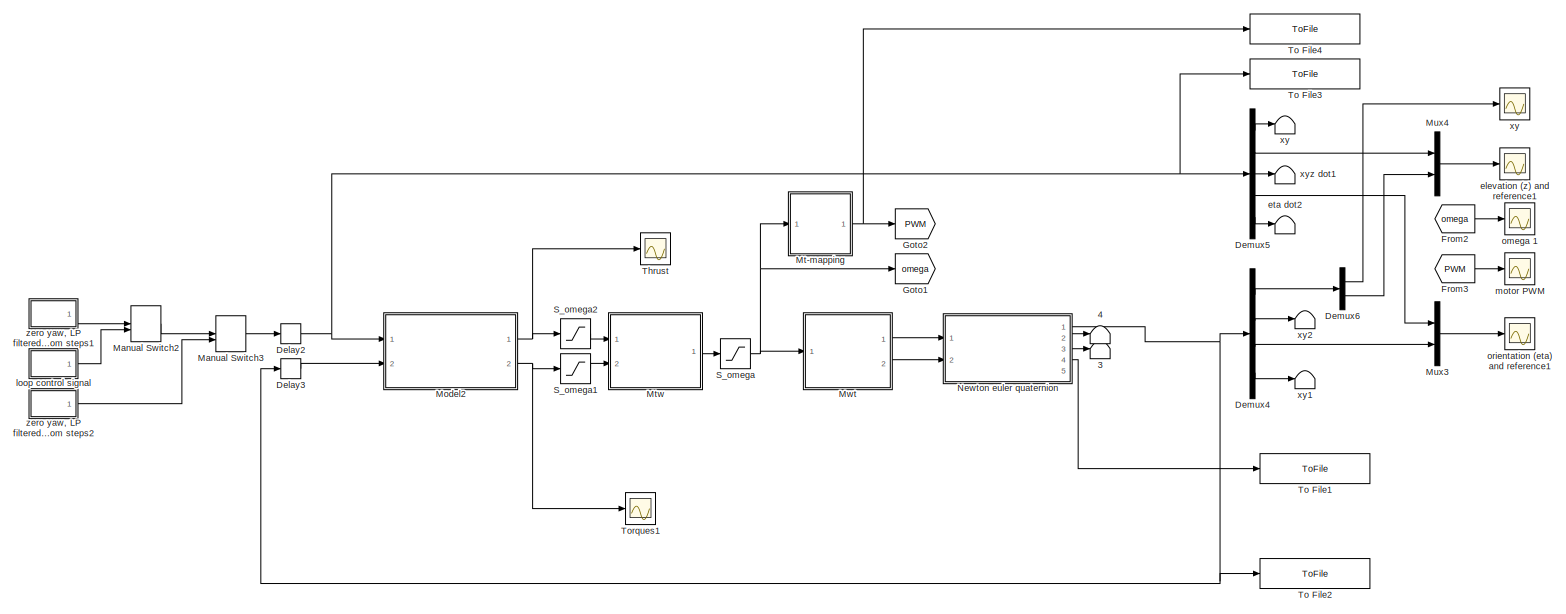
[diagram: root canvas - part 1/1, most of the canvas]
MODEL slx_ab67e1c59dba
KIND model
CONFIG AbsTol = auto
CONFIG FixedStep = auto
CONFIG MaxStep = auto
CONFIG MinStep = auto
CONFIG RelTol = 1e-3
CONFIG SampleTimeConstraint = Unconstrained
CONFIG Solver = VariableStepAuto
CONFIG SolverMode = Auto
CONFIG SolverName = VariableStepAuto
CONFIG StartTime = 0.0
CONFIG StopTime = 30
BLOCK [Terminator]    3
BLOCK [Terminator]    4
BLOCK [Terminator]    eta dot2
BLOCK [Terminator]    xy
BLOCK [Terminator]    xy1
BLOCK [Terminator]    xy2
BLOCK [Terminator]   xyz dot1
BLOCK [Delay] Delay2
  DelayLength = 1
  InitialCondition = 0
  InputPortMap = u0
  Ports = [1, 1]
  SampleTime = inner_h
BLOCK [Delay] Delay3
  DelayLength = 1
  InitialCondition = 0
  InputPortMap = u0
  Ports = [1, 1]
  SampleTime = inner_h
BLOCK [Demux] Demux4
  DisplayOption = bar
  Outputs = [3,3,3,3]
  Ports = [1, 4]
BLOCK [Demux] Demux5
  DisplayOption = bar
  Outputs = [2,1,3,3,3]
  Ports = [1, 5]
BLOCK [Demux] Demux6
  DisplayOption = bar
  Outputs = [2,1]
  Ports = [1, 2]
BLOCK [From] From2
  GotoTag = omega
BLOCK [From] From3
  GotoTag = PWM
BLOCK [Goto] Goto1
  GotoTag = omega
BLOCK [Goto] Goto2
  GotoTag = PWM
BLOCK [ManualSwitch] Manual Switch2
BLOCK [ManualSwitch] Manual Switch3
BLOCK [ModelReference] Model2
  ModelNameDialog = inner_PD_c.mdl
  ModelReferenceVersion = 1.87
  Ports = [2, 2]
  Variant = off
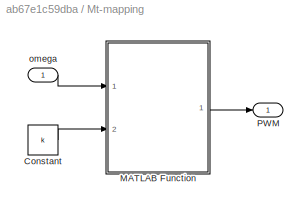
BLOCK [SubSystem] Mt-mapping
  Ports = [1, 1]
  RequestExecContextInheritance = off
  Variant = off
BLOCK [Constant] Mt-mapping/Constant
  Value = k
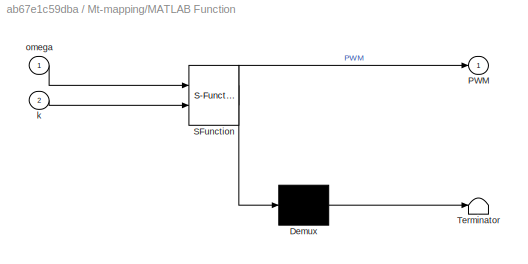
BLOCK [SubSystem] Mt-mapping/MATLAB Function
  ErrorFcn = Stateflow.Translate.translate
  PermitHierarchicalResolution = ExplicitOnly
  Ports = [2, 1]
  RequestExecContextInheritance = off
  SFBlockType = MATLAB Function
  TreatAsAtomicUnit = on
  Variant = off
BLOCK [Demux] Mt-mapping/MATLAB Function/ Demux 
  Outputs = 1
  Ports = [1, 1]
BLOCK [S-Function] Mt-mapping/MATLAB Function/ SFunction 
  EnableBusSupport = on
  FunctionName = sf_sfun
  PortCounts = [2 2]
  Ports = [2, 2]
  SFunctionDeploymentMode = off
  Tag = Stateflow S-Function inner_pd_continuous_test 3
BLOCK [Terminator] Mt-mapping/MATLAB Function/ Terminator 
BLOCK [Outport] Mt-mapping/MATLAB Function/PWM
  IconDisplay = Port number
BLOCK [Inport] Mt-mapping/MATLAB Function/k
  IconDisplay = Port number
  Port = 2
BLOCK [Inport] Mt-mapping/MATLAB Function/omega
  IconDisplay = Port number
BLOCK [Outport] Mt-mapping/PWM
  IconDisplay = Port number
BLOCK [Inport] Mt-mapping/omega
  IconDisplay = Port number
BLOCK [ModelReference] Mtw
  ModelNameDialog = thrust2omega.mdl
  ModelReferenceVersion = 1.3
  Ports = [2, 1]
  Variant = off
BLOCK [Mux] Mux3
  DisplayOption = bar
  Inputs = 2
  Ports = [2, 1]
BLOCK [Mux] Mux4
  DisplayOption = bar
  Inputs = 2
  Ports = [2, 1]
BLOCK [ModelReference] Mwt
  ModelNameDialog = omega2thrust.mdl
  ModelReferenceVersion = 1.3
  Ports = [1, 2]
  Variant = off
BLOCK [ModelReference] Newton euler quaternion
  ModelNameDialog = quadcopter_model_c_NewtonEuler.mdl
  ModelReferenceVersion = 1.324
  Ports = [2, 5]
  Variant = off
BLOCK [Saturate] S_omega
  InputPortMap = u0
  LowerLimit = omega_min_lim
  Ports = [1, 1]
  UpperLimit = omega_max_lim
BLOCK [Saturate] S_omega1
  InputPortMap = u0
  LowerLimit = tau_min_lim
  Ports = [1, 1]
  UpperLimit = tau_max_lim
BLOCK [Saturate] S_omega2
  InputPortMap = u0
  LowerLimit = tau_min_lim
  Ports = [1, 1]
  UpperLimit = T_max_lim
BLOCK [Scope] Thrust
  Ports = [1]
  ScopeSpecificationString = Simulink.scopes.TimeScopeBlockCfg('CurrentConfiguration', extmgr.ConfigurationSet(extmgr.Configuration('Core','General UI',true),extmgr.Configuration('Core','Source UI',true),extmgr.Configuration('Sources','WiredSimulink',true,'DataLoggingVariableName','ScopeData1','DataLoggingSaveFormat','Array','DataLoggingDecimation','1','DataLoggingDecimateData',true),extmgr.Configuration('Visuals','Time Domai...<+1456ch>
BLOCK [ToFile] To File1
  Filename = Accelerations
  MatrixName = Accel
  Ports = [1]
  SampleTime = inner_h
  SaveFormat = Timeseries
BLOCK [ToFile] To File2
  Filename = inner_PD_data.mat
  MatrixName = PD_data
  Ports = [1]
  SampleTime = inner_h
  SaveFormat = Timeseries
BLOCK [ToFile] To File3
  Filename = inner_PD_ref.mat
  MatrixName = PD_ref
  Ports = [1]
  SampleTime = inner_h
  SaveFormat = Timeseries
BLOCK [ToFile] To File4
  Filename = PWM_ref.mat
  MatrixName = PWM
  Ports = [1]
  SampleTime = inner_h
  SaveFormat = Timeseries
BLOCK [Scope] Torques1
  Ports = [1]
  ScopeSpecificationString = Simulink.scopes.TimeScopeBlockCfg('CurrentConfiguration', extmgr.ConfigurationSet(extmgr.Configuration('Core','General UI',true),extmgr.Configuration('Core','Source UI',true),extmgr.Configuration('Sources','WiredSimulink',true,'DataLoggingVariableName','ScopeData3','DataLoggingSaveFormat','Array','DataLoggingDecimation','1','DataLoggingDecimateData',true),extmgr.Configuration('Visuals','Time Domai...<+1608ch>
BLOCK [Scope] elevation (z) and reference1
  Ports = [1]
  ScopeSpecificationString = Simulink.scopes.TimeScopeBlockCfg('CurrentConfiguration', extmgr.ConfigurationSet(extmgr.Configuration('Core','General UI',true),extmgr.Configuration('Core','Source UI',true),extmgr.Configuration('Sources','WiredSimulink',true,'DataLoggingVariableName','ScopeData4','DataLoggingSaveFormat','Array','DataLoggingDecimation','1','DataLoggingDecimateData',true),extmgr.Configuration('Visuals','Time Domai...<+1469ch>
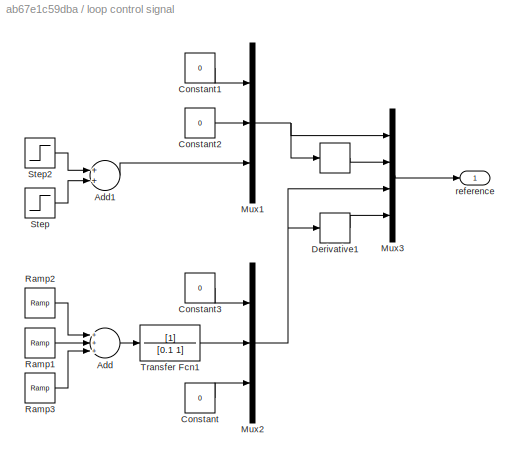
BLOCK [SubSystem] loop control signal
  Ports = [0, 1]
  RequestExecContextInheritance = off
  Variant = off
BLOCK [Derivative] loop control signal/        
BLOCK [Sum] loop control signal/Add
  InputSameDT = off
  Inputs = +++
  OutDataTypeStr = Inherit: Inherit via internal rule
  Ports = [3, 1]
  SaturateOnIntegerOverflow = off
BLOCK [Sum] loop control signal/Add1
  InputSameDT = off
  OutDataTypeStr = Inherit: Inherit via internal rule
  Ports = [2, 1]
  SaturateOnIntegerOverflow = off
BLOCK [Constant] loop control signal/Constant
  Value = 0
BLOCK [Constant] loop control signal/Constant1
  Value = 0
BLOCK [Constant] loop control signal/Constant2
  Value = 0
BLOCK [Constant] loop control signal/Constant3
  Value = 0
BLOCK [Derivative] loop control signal/Derivative1
BLOCK [Mux] loop control signal/Mux1
  DisplayOption = bar
  Inputs = 3
  Ports = [3, 1]
BLOCK [Mux] loop control signal/Mux2
  DisplayOption = bar
  Inputs = 3
  Ports = [3, 1]
BLOCK [Mux] loop control signal/Mux3
  DisplayOption = bar
  Inputs = [3,3,3,3]
  Ports = [4, 1]
BLOCK [Reference] loop control signal/Ramp1  REF=simulink/Sources/Ramp
  Ports = [0, 1]
  SourceBlock = simulink/Sources/Ramp
  SourceType = Ramp
BLOCK [Reference] loop control signal/Ramp2  REF=simulink/Sources/Ramp
  Ports = [0, 1]
  SourceBlock = simulink/Sources/Ramp
  SourceType = Ramp
BLOCK [Reference] loop control signal/Ramp3  REF=simulink/Sources/Ramp
  Ports = [0, 1]
  SourceBlock = simulink/Sources/Ramp
  SourceType = Ramp
BLOCK [Step] loop control signal/Step
  After = -2
  SampleTime = 0
  Time = 5.5
BLOCK [Step] loop control signal/Step2
  After = 2
  SampleTime = 0
  Time = 3.6
BLOCK [TransferFcn] loop control signal/Transfer Fcn1
  Denominator = [0.1 1]
BLOCK [Outport] loop control signal/reference
  IconDisplay = Port number
BLOCK [Scope] motor PWM
  Ports = [1]
  ScopeSpecificationString = C++SS(StrPVP('SaveName','ScopeData5'),StrPVP('LimitDataPoints','on'),StrPVP('DataFormat','Array'),StrPVP('Decimation','1'),StrPVP('BlockParamSampleInput','off'))
BLOCK [Scope] omega 1
  Ports = [1]
  ScopeSpecificationString = C++SS(StrPVP('SaveName','ScopeData6'),StrPVP('LimitDataPoints','on'),StrPVP('DataFormat','Array'),StrPVP('Decimation','1'),StrPVP('BlockParamSampleInput','off'))
BLOCK [Scope] orientation (eta) and reference1
  Ports = [1]
  ScopeSpecificationString = Simulink.scopes.TimeScopeBlockCfg('CurrentConfiguration', extmgr.ConfigurationSet(extmgr.Configuration('Core','General UI',true),extmgr.Configuration('Core','Source UI',true),extmgr.Configuration('Sources','WiredSimulink',true,'DataLoggingVariableName','ScopeData7','DataLoggingSaveFormat','Array','DataLoggingDecimation','1','DataLoggingDecimateData',true),extmgr.Configuration('Visuals','Time Domai...<+1525ch>
BLOCK [Scope] xy
  Ports = [1]
  ScopeSpecificationString = Simulink.scopes.TimeScopeBlockCfg('CurrentConfiguration', extmgr.ConfigurationSet(extmgr.Configuration('Core','General UI',true),extmgr.Configuration('Core','Source UI',true),extmgr.Configuration('Sources','WiredSimulink',true,'DataLoggingVariableName','ScopeData8','DataLoggingLimitDataPoints',true,'DataLoggingSaveFormat','Array','DataLoggingDecimation','1','DataLoggingDecimateData',true),extmgr.C...<+1521ch>
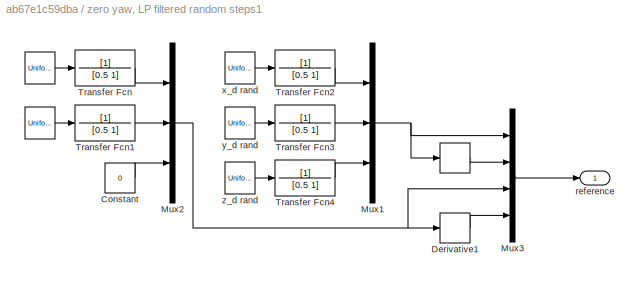
BLOCK [SubSystem] zero yaw, LP filtered random steps1
  Ports = [0, 1]
  RequestExecContextInheritance = off
  Variant = off
BLOCK [UniformRandomNumber] zero yaw, LP filtered random steps1/ 
  Maximum = 0.2
  Minimum = -0.2
  SampleTime = 10
  Seed = 4
BLOCK [UniformRandomNumber] zero yaw, LP filtered random steps1/   
  Maximum = 0.2
  Minimum = -0.2
  SampleTime = 10
  Seed = 3
BLOCK [Derivative] zero yaw, LP filtered random steps1/        
BLOCK [Constant] zero yaw, LP filtered random steps1/Constant
  Value = 0
BLOCK [Derivative] zero yaw, LP filtered random steps1/Derivative1
BLOCK [Mux] zero yaw, LP filtered random steps1/Mux1
  DisplayOption = bar
  Inputs = 3
  Ports = [3, 1]
BLOCK [Mux] zero yaw, LP filtered random steps1/Mux2
  DisplayOption = bar
  Inputs = 3
  Ports = [3, 1]
BLOCK [Mux] zero yaw, LP filtered random steps1/Mux3
  DisplayOption = bar
  Inputs = [3,3,3,3]
  Ports = [4, 1]
BLOCK [TransferFcn] zero yaw, LP filtered random steps1/Transfer Fcn
  Denominator = [0.5 1]
BLOCK [TransferFcn] zero yaw, LP filtered random steps1/Transfer Fcn1
  Denominator = [0.5 1]
BLOCK [TransferFcn] zero yaw, LP filtered random steps1/Transfer Fcn2
  Denominator = [0.5 1]
BLOCK [TransferFcn] zero yaw, LP filtered random steps1/Transfer Fcn3
  Denominator = [0.5 1]
BLOCK [TransferFcn] zero yaw, LP filtered random steps1/Transfer Fcn4
  Denominator = [0.5 1]
BLOCK [Outport] zero yaw, LP filtered random steps1/reference
  IconDisplay = Port number
BLOCK [UniformRandomNumber] zero yaw, LP filtered random steps1/x_d rand
  Maximum = 5
  Minimum = -5
  SampleTime = 10
BLOCK [UniformRandomNumber] zero yaw, LP filtered random steps1/y_d rand
  Maximum = 5
  Minimum = -5
  SampleTime = 10
  Seed = 1
BLOCK [UniformRandomNumber] zero yaw, LP filtered random steps1/z_d rand
  Maximum = 3
  Minimum = 0
  SampleTime = 10
  Seed = 2
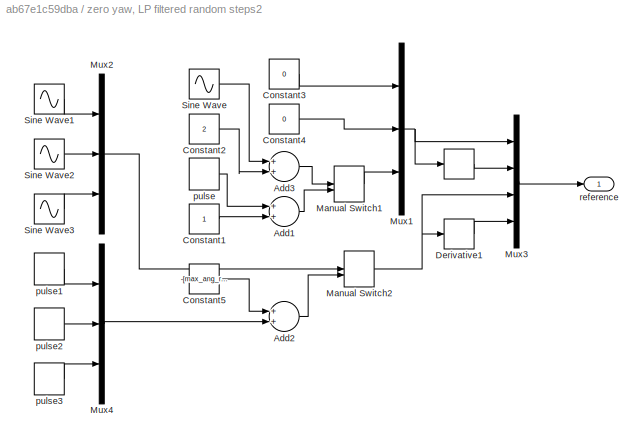
BLOCK [SubSystem] zero yaw, LP filtered random steps2
  Ports = [0, 1]
  RequestExecContextInheritance = off
  Variant = off
BLOCK [Derivative] zero yaw, LP filtered random steps2/        
BLOCK [Sum] zero yaw, LP filtered random steps2/Add1
  InputSameDT = off
  OutDataTypeStr = Inherit: Inherit via internal rule
  Ports = [2, 1]
  SaturateOnIntegerOverflow = off
BLOCK [Sum] zero yaw, LP filtered random steps2/Add2
  InputSameDT = off
  OutDataTypeStr = Inherit: Inherit via internal rule
  Ports = [2, 1]
  SaturateOnIntegerOverflow = off
BLOCK [Sum] zero yaw, LP filtered random steps2/Add3
  InputSameDT = off
  OutDataTypeStr = Inherit: Inherit via internal rule
  Ports = [2, 1]
  SaturateOnIntegerOverflow = off
BLOCK [Constant] zero yaw, LP filtered random steps2/Constant1
BLOCK [Constant] zero yaw, LP filtered random steps2/Constant2
  Value = 2
BLOCK [Constant] zero yaw, LP filtered random steps2/Constant3
  Value = 0
BLOCK [Constant] zero yaw, LP filtered random steps2/Constant4
  Value = 0
BLOCK [Constant] zero yaw, LP filtered random steps2/Constant5
  Value = -[max_ang_ref,max_ang_ref,max_ang_ref]
BLOCK [Derivative] zero yaw, LP filtered random steps2/Derivative1
BLOCK [ManualSwitch] zero yaw, LP filtered random steps2/Manual Switch1
  CurrentSetting = 0
BLOCK [ManualSwitch] zero yaw, LP filtered random steps2/Manual Switch2
BLOCK [Mux] zero yaw, LP filtered random steps2/Mux1
  DisplayOption = bar
  Inputs = 3
  Ports = [3, 1]
BLOCK [Mux] zero yaw, LP filtered random steps2/Mux2
  DisplayOption = bar
  Inputs = 3
  Ports = [3, 1]
BLOCK [Mux] zero yaw, LP filtered random steps2/Mux3
  DisplayOption = bar
  Inputs = [3,3,3,3]
  Ports = [4, 1]
BLOCK [Mux] zero yaw, LP filtered random steps2/Mux4
  DisplayOption = bar
  Inputs = 3
  Ports = [3, 1]
BLOCK [Sin] zero yaw, LP filtered random steps2/Sine Wave
  Ports = [0, 1]
  SampleTime = 0
BLOCK [Sin] zero yaw, LP filtered random steps2/Sine Wave1
  Amplitude = max_ang_ref
  Ports = [0, 1]
  SampleTime = 0
BLOCK [Sin] zero yaw, LP filtered random steps2/Sine Wave2
  Amplitude = max_ang_ref
  Phase = pi/2
  Ports = [0, 1]
BLOCK [Sin] zero yaw, LP filtered random steps2/Sine Wave3
  Amplitude = max_ang_ref
  Phase = pi
  Ports = [0, 1]
  SampleTime = 0
BLOCK [DiscretePulseGenerator] zero yaw, LP filtered random steps2/pulse
  Amplitude = 2
  Period = 10
  Ports = [0, 1]
  PulseType = Time based
  PulseWidth = 50
BLOCK [DiscretePulseGenerator] zero yaw, LP filtered random steps2/pulse1
  Amplitude = max_ang_ref*2
  Period = 10
  Ports = [0, 1]
  PulseType = Time based
  PulseWidth = 50
BLOCK [DiscretePulseGenerator] zero yaw, LP filtered random steps2/pulse2
  Amplitude = max_ang_ref*2
  Period = 10
  Ports = [0, 1]
  PulseType = Time based
  PulseWidth = 50
BLOCK [DiscretePulseGenerator] zero yaw, LP filtered random steps2/pulse3
  Amplitude = max_ang_ref*2
  Period = 10
  Ports = [0, 1]
  PulseType = Time based
  PulseWidth = 50
BLOCK [Outport] zero yaw, LP filtered random steps2/reference
  IconDisplay = Port number
NET Delay2:1 -> Demux5:1, Model2:1, To File3:1
LINE Delay3:1 -> Model2:2
LINE Demux4:1 -> Demux6:1
LINE Demux4:2 ->    xy2:1
LINE Demux4:3 -> Mux3:2
LINE Demux4:4 ->    xy1:1
LINE Demux5:1 ->    xy:1
LINE Demux5:2 -> Mux4:1
LINE Demux5:3 ->   xyz dot1:1
LINE Demux5:4 -> Mux3:1
LINE Demux5:5 ->    eta dot2:1
LINE Demux6:1 -> xy:1
LINE Demux6:2 -> Mux4:2
LINE From2:1 -> omega 1:1
LINE From3:1 -> motor PWM:1
LINE Manual Switch2:1 -> Manual Switch3:1
LINE Manual Switch3:1 -> Delay2:1
NET Model2:1 -> S_omega2:1, Thrust:1
NET Model2:2 -> S_omega1:1, Torques1:1
LINE Mt-mapping/Constant:1 -> Mt-mapping/MATLAB Function:2
LINE Mt-mapping/MATLAB Function:1 -> Mt-mapping/PWM:1
LINE Mt-mapping/omega:1 -> Mt-mapping/MATLAB Function:1
NET Mt-mapping:1 -> Goto2:1, To File4:1
LINE Mtw:1 -> S_omega:1
LINE Mux3:1 -> orientation (eta) and reference1:1
LINE Mux4:1 -> elevation (z) and reference1:1
LINE Mwt:1 -> Newton euler quaternion:1
LINE Mwt:2 -> Newton euler quaternion:2
NET Newton euler quaternion:1 -> Delay3:1, Demux4:1, To File2:1
LINE Newton euler quaternion:2 ->    4:1
LINE Newton euler quaternion:3 ->    3:1
LINE Newton euler quaternion:4 -> To File1:1
LINE S_omega1:1 -> Mtw:2
LINE S_omega2:1 -> Mtw:1
NET S_omega:1 -> Goto1:1, Mt-mapping:1, Mwt:1
LINE loop control signal/        :1 -> loop control signal/Mux3:2
LINE loop control signal/Add1:1 -> loop control signal/Mux1:3
LINE loop control signal/Add:1 -> loop control signal/Transfer Fcn1:1
LINE loop control signal/Constant1:1 -> loop control signal/Mux1:1
LINE loop control signal/Constant2:1 -> loop control signal/Mux1:2
LINE loop control signal/Constant3:1 -> loop control signal/Mux2:1
LINE loop control signal/Constant:1 -> loop control signal/Mux2:3
LINE loop control signal/Derivative1:1 -> loop control signal/Mux3:4
NET loop control signal/Mux1:1 -> loop control signal/        :1, loop control signal/Mux3:1
NET loop control signal/Mux2:1 -> loop control signal/Derivative1:1, loop control signal/Mux3:3
LINE loop control signal/Mux3:1 -> loop control signal/reference:1
LINE loop control signal/Ramp1:1 -> loop control signal/Add:2
LINE loop control signal/Ramp2:1 -> loop control signal/Add:1
LINE loop control signal/Ramp3:1 -> loop control signal/Add:3
LINE loop control signal/Step2:1 -> loop control signal/Add1:1
LINE loop control signal/Step:1 -> loop control signal/Add1:2
LINE loop control signal/Transfer Fcn1:1 -> loop control signal/Mux2:2
LINE loop control signal:1 -> Manual Switch2:2
LINE zero yaw, LP filtered random steps1/        :1 -> zero yaw, LP filtered random steps1/Mux3:2
LINE zero yaw, LP filtered random steps1/   :1 -> zero yaw, LP filtered random steps1/Transfer Fcn:1
LINE zero yaw, LP filtered random steps1/ :1 -> zero yaw, LP filtered random steps1/Transfer Fcn1:1
LINE zero yaw, LP filtered random steps1/Constant:1 -> zero yaw, LP filtered random steps1/Mux2:3
LINE zero yaw, LP filtered random steps1/Derivative1:1 -> zero yaw, LP filtered random steps1/Mux3:4
NET zero yaw, LP filtered random steps1/Mux1:1 -> zero yaw, LP filtered random steps1/        :1, zero yaw, LP filtered random steps1/Mux3:1
NET zero yaw, LP filtered random steps1/Mux2:1 -> zero yaw, LP filtered random steps1/Derivative1:1, zero yaw, LP filtered random steps1/Mux3:3
LINE zero yaw, LP filtered random steps1/Mux3:1 -> zero yaw, LP filtered random steps1/reference:1
LINE zero yaw, LP filtered random steps1/Transfer Fcn1:1 -> zero yaw, LP filtered random steps1/Mux2:2
LINE zero yaw, LP filtered random steps1/Transfer Fcn2:1 -> zero yaw, LP filtered random steps1/Mux1:1
LINE zero yaw, LP filtered random steps1/Transfer Fcn3:1 -> zero yaw, LP filtered random steps1/Mux1:2
LINE zero yaw, LP filtered random steps1/Transfer Fcn4:1 -> zero yaw, LP filtered random steps1/Mux1:3
LINE zero yaw, LP filtered random steps1/Transfer Fcn:1 -> zero yaw, LP filtered random steps1/Mux2:1
LINE zero yaw, LP filtered random steps1/x_d rand:1 -> zero yaw, LP filtered random steps1/Transfer Fcn2:1
LINE zero yaw, LP filtered random steps1/y_d rand:1 -> zero yaw, LP filtered random steps1/Transfer Fcn3:1
LINE zero yaw, LP filtered random steps1/z_d rand:1 -> zero yaw, LP filtered random steps1/Transfer Fcn4:1
LINE zero yaw, LP filtered random steps1:1 -> Manual Switch2:1
LINE zero yaw, LP filtered random steps2/        :1 -> zero yaw, LP filtered random steps2/Mux3:2
LINE zero yaw, LP filtered random steps2/Add1:1 -> zero yaw, LP filtered random steps2/Manual Switch1:2
LINE zero yaw, LP filtered random steps2/Add2:1 -> zero yaw, LP filtered random steps2/Manual Switch2:2
LINE zero yaw, LP filtered random steps2/Add3:1 -> zero yaw, LP filtered random steps2/Manual Switch1:1
LINE zero yaw, LP filtered random steps2/Constant1:1 -> zero yaw, LP filtered random steps2/Add1:2
LINE zero yaw, LP filtered random steps2/Constant2:1 -> zero yaw, LP filtered random steps2/Add3:2
LINE zero yaw, LP filtered random steps2/Constant3:1 -> zero yaw, LP filtered random steps2/Mux1:1
LINE zero yaw, LP filtered random steps2/Constant4:1 -> zero yaw, LP filtered random steps2/Mux1:2
LINE zero yaw, LP filtered random steps2/Constant5:1 -> zero yaw, LP filtered random steps2/Add2:1
LINE zero yaw, LP filtered random steps2/Derivative1:1 -> zero yaw, LP filtered random steps2/Mux3:4
LINE zero yaw, LP filtered random steps2/Manual Switch1:1 -> zero yaw, LP filtered random steps2/Mux1:3
NET zero yaw, LP filtered random steps2/Manual Switch2:1 -> zero yaw, LP filtered random steps2/Derivative1:1, zero yaw, LP filtered random steps2/Mux3:3
NET zero yaw, LP filtered random steps2/Mux1:1 -> zero yaw, LP filtered random steps2/        :1, zero yaw, LP filtered random steps2/Mux3:1
LINE zero yaw, LP filtered random steps2/Mux2:1 -> zero yaw, LP filtered random steps2/Manual Switch2:1
LINE zero yaw, LP filtered random steps2/Mux3:1 -> zero yaw, LP filtered random steps2/reference:1
LINE zero yaw, LP filtered random steps2/Mux4:1 -> zero yaw, LP filtered random steps2/Add2:2
LINE zero yaw, LP filtered random steps2/Sine Wave1:1 -> zero yaw, LP filtered random steps2/Mux2:1
LINE zero yaw, LP filtered random steps2/Sine Wave2:1 -> zero yaw, LP filtered random steps2/Mux2:2
LINE zero yaw, LP filtered random steps2/Sine Wave3:1 -> zero yaw, LP filtered random steps2/Mux2:3
LINE zero yaw, LP filtered random steps2/Sine Wave:1 -> zero yaw, LP filtered random steps2/Add3:1
LINE zero yaw, LP filtered random steps2/pulse1:1 -> zero yaw, LP filtered random steps2/Mux4:1
LINE zero yaw, LP filtered random steps2/pulse2:1 -> zero yaw, LP filtered random steps2/Mux4:2
LINE zero yaw, LP filtered random steps2/pulse3:1 -> zero yaw, LP filtered random steps2/Mux4:3
LINE zero yaw, LP filtered random steps2/pulse:1 -> zero yaw, LP filtered random steps2/Add1:1
LINE zero yaw, LP filtered random steps2:1 -> Manual Switch3:2
note: NET lines group one-source signal fan-out (src -> all destinations, sorted); 1:1 wires keep LINE
CHART Mt-mapping/MATLAB Function states=1 transitions=1
  STATE_LABEL 'eML_blk_kernel()'
  STATE_LABEL 'SCRIPT:\nfunction PWM = Mt(omega, k)\n%#codegen\nrotor_thrusts = k.*omega.^2;\nbeta1 = 0.0877;\nbeta2 = 0.0660;\nPWM =  -beta1/(2*beta2) + sqrt((beta1/(2*beta2))^2 + rotor_thrusts/beta2);'
